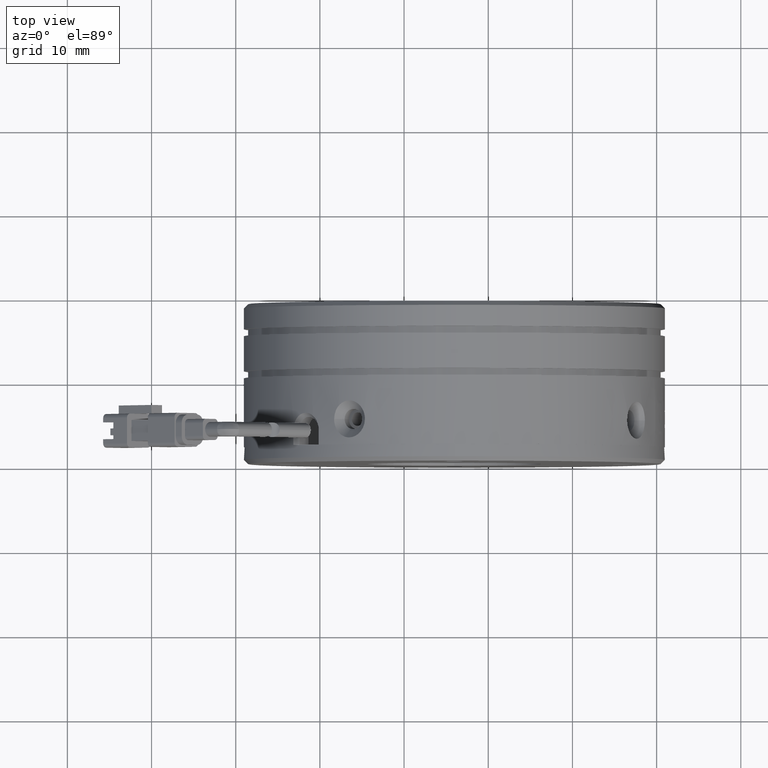
[diagram: clean part render]
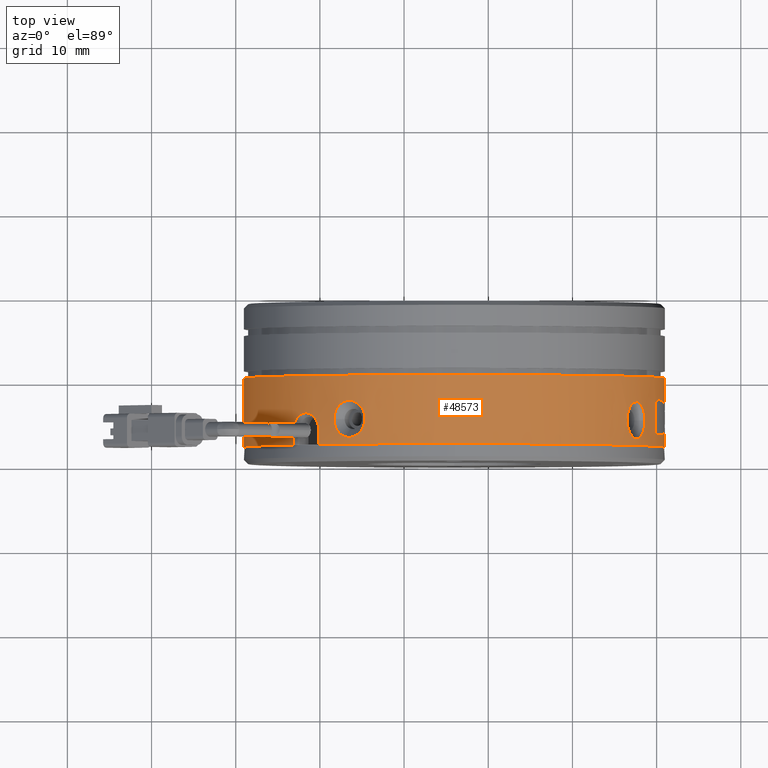
[diagram: same view with one face highlighted and labeled with its STEP entity id]
A machine part, top view. The second image highlights one B-rep face of the part: STEP entity #48573.
In plain terms, the highlighted cylindrical surface (partial cylindrical patch) has radius 25 mm, axis along (0, 1, -0).
Its self-contained STEP definition (entity closure, byte-faithful):
#198 = CARTESIAN_POINT ( 'NONE',  ( -20.12320127845588400, 3.868234147060709100, 19.12784023745772900 ) ) ;
#249 = CARTESIAN_POINT ( 'NONE',  ( -14.65323546949506600, 5.025875740962060700, 22.62869884692471300 ) ) ;
#433 = CARTESIAN_POINT ( 'NONE',  ( -15.69198677719024100, 3.199914697282051400, 22.11146839832291300 ) ) ;
#481 = CARTESIAN_POINT ( 'NONE',  ( 18.51408515264668600, 4.209159485326343200, 10.81459179394942200 ) ) ;
#620 = CARTESIAN_POINT ( 'NONE',  ( 20.07991698485157900, 7.694025951035285100, 6.626726948260824200 ) ) ;
#637 = CARTESIAN_POINT ( 'NONE',  ( -18.08497988603602000, 4.080495389426645600, 20.67233954934540600 ) ) ;
#695 = CARTESIAN_POINT ( 'NONE',  ( 17.27167173758336800, 3.084271499202876100, 13.09326545330914000 ) ) ;
#757 = ORIENTED_EDGE ( 'NONE', *, *, #37888, .T. ) ;
#860 = CARTESIAN_POINT ( 'NONE',  ( 20.75882114431203000, 3.620890884786182700, 3.276004059552732000 ) ) ;
#904 = CARTESIAN_POINT ( 'NONE',  ( 16.49214373681054000, 5.168234147060708500, 14.28331964063667500 ) ) ;
#1002 =( BOUNDED_CURVE ( )  B_SPLINE_CURVE ( 3, ( #30401, #1208, #44860, #16049 ),
 .UNSPECIFIED., .F., .T. ) 
 B_SPLINE_CURVE_WITH_KNOTS ( ( 4, 4 ),
 ( 5.252670096415093000, 5.254124959259855600 ),
 .UNSPECIFIED. ) 
 CURVE ( )  GEOMETRIC_REPRESENTATION_ITEM ( )  RATIONAL_B_SPLINE_CURVE ( ( 1.000000000000000000, 0.9999998236145162300, 0.9999998236145162300, 1.000000000000000000 ) ) 
 REPRESENTATION_ITEM ( '' )  );
#1064 = AXIS2_PLACEMENT_3D ( 'NONE', #13769, #47351, #18630 ) ;
#1208 = CARTESIAN_POINT ( 'NONE',  ( 19.84306476123924400, 5.104238206659600200, 7.434820255219084300 ) ) ;
#1330 = EDGE_CURVE ( 'NONE', #60598, #60239, #24988, .T. ) ;
#1429 = CARTESIAN_POINT ( 'NONE',  ( 17.96202705049371000, 7.252196794918648800, 11.89753497607337200 ) ) ;
#1907 = DIRECTION ( 'NONE',  ( 0.0000000000000000000, 1.000000000000000000, -0.0000000000000000000 ) ) ;
#1967 = CARTESIAN_POINT ( 'NONE',  ( 19.89646920286138300, 3.749712273616252000, 7.261681192122790000 ) ) ;
#2155 = CIRCLE ( 'NONE', #1064, 25.00000000000000000 ) ;
#2236 = ORIENTED_EDGE ( 'NONE', *, *, #54690, .T. ) ;
#2373 = EDGE_CURVE ( 'NONE', #13202, #45239, #41893, .T. ) ;
#2430 = CARTESIAN_POINT ( 'NONE',  ( 20.70010523892593200, 3.551589418287440100, 3.691705350810279300 ) ) ;
#2981 = ORIENTED_EDGE ( 'NONE', *, *, #45496, .T. ) ;
#3077 = DIRECTION ( 'NONE',  ( 0.0000000000000000000, 1.000000000000000000, -0.0000000000000000000 ) ) ;
#3078 = CARTESIAN_POINT ( 'NONE',  ( 20.96461728709808600, 7.059601391237767300, 0.7083574249983168900 ) ) ;
#3151 = CARTESIAN_POINT ( 'NONE',  ( -18.25576117448013800, 5.726606713949252000, 20.55503359053789200 ) ) ;
#3333 = VERTEX_POINT ( 'NONE', #20683 ) ;
#3370 = CARTESIAN_POINT ( 'NONE',  ( -16.28293880078115300, 7.353763402375156100, 21.78949684844016900 ) ) ;
#3574 = CARTESIAN_POINT ( 'NONE',  ( -14.66543054506434500, 5.453143327471437400, 22.62298265852351900 ) ) ;
#3739 = B_SPLINE_CURVE_WITH_KNOTS ( 'NONE', 3,
 ( #32849, #61451, #42539, #13728, #47306, #18583, #52097, #23461, #56910, #28266 ),
 .UNSPECIFIED., .F., .F.,
 ( 4, 2, 2, 2, 4 ),
 ( 0.0000000000000000000, 0.0003539154720314069100, 0.0007078309440628138200, 0.001061746416094220800, 0.001415661888125627600 ),
 .UNSPECIFIED. ) ;
#4397 = CARTESIAN_POINT ( 'NONE',  ( 20.94433259945262200, 7.013857998718211000, 1.233426618746881000 ) ) ;
#4534 = EDGE_CURVE ( 'NONE', #58688, #26346, #16990, .T. ) ;
#4727 = CARTESIAN_POINT ( 'NONE',  ( 18.60288020821306500, 5.168234147060708500, 10.62741683077895000 ) ) ;
#4932 = ORIENTED_EDGE ( 'NONE', *, *, #7618, .T. ) ;
#4973 = CARTESIAN_POINT ( 'NONE',  ( -14.65323546949505000, 5.168234147060708500, 22.62869884692472100 ) ) ;
#5193 = CARTESIAN_POINT ( 'NONE',  ( -16.28003248483973300, 2.968638605293177700, 21.79250202241476900 ) ) ;
#5243 = CARTESIAN_POINT ( 'NONE',  ( 18.42126804005754400, 3.845971748396280100, 11.00608436952663600 ) ) ;
#5402 = CARTESIAN_POINT ( 'NONE',  ( -18.22319937025753600, 4.471282925419449900, 20.57758570320166000 ) ) ;
#5455 = CARTESIAN_POINT ( 'NONE',  ( 17.06845877027141300, 3.268726398569390800, 13.41807087934553000 ) ) ;
#5552 = DIRECTION ( 'NONE',  ( 0.0000000000000000000, 1.000000000000000000, -0.0000000000000000000 ) ) ;
#5605 = CARTESIAN_POINT ( 'NONE',  ( 20.71592161918375300, 3.552825996118543100, 3.585772028101073000 ) ) ;
#6270 = ORIENTED_EDGE ( 'NONE', *, *, #19152, .T. ) ;
#6337 = CARTESIAN_POINT ( 'NONE',  ( 20.80222173950301100, 6.975325470166869700, 2.927184821235513800 ) ) ;
#6678 = DIRECTION ( 'NONE',  ( 0.0000000000000000000, 1.000000000000000000, -0.0000000000000000000 ) ) ;
#6768 = CARTESIAN_POINT ( 'NONE',  ( 19.85202578657188300, 4.047051057493446200, 7.406096033444033100 ) ) ;
#6908 = CARTESIAN_POINT ( 'NONE',  ( 20.92789667332636900, 4.330325048378557400, 1.522707774882770600 ) ) ;
#7618 = EDGE_CURVE ( 'NONE', #45239, #36413, #54340, .T. ) ;
#7710 = CARTESIAN_POINT ( 'NONE',  ( 20.97418136128692400, 2.168234147060708900, 3.422791846577617100E-015 ) ) ;
#7885 = DIRECTION ( 'NONE',  ( -0.0000000000000000000, -1.000000000000000000, 0.0000000000000000000 ) ) ;
#7922 = CARTESIAN_POINT ( 'NONE',  ( 20.96842437029928200, 7.045842321053945600, 0.5566223923077282500 ) ) ;
#7983 = CARTESIAN_POINT ( 'NONE',  ( -18.13865202391065200, 6.127308808793963600, 20.63566312080048000 ) ) ;
#8059 = EDGE_CURVE ( 'NONE', #60239, #22164, #51898, .T. ) ;
#8148 = CARTESIAN_POINT ( 'NONE',  ( -23.15365887617074800, 3.868234147060709100, 16.09738263974287900 ) ) ;
#8211 = CARTESIAN_POINT ( 'NONE',  ( -15.92335361478682600, 7.252196794915976200, 21.98784568920657600 ) ) ;
#8410 = CARTESIAN_POINT ( 'NONE',  ( -14.65323546949505000, 5.168234147060708500, 22.62869884692472100 ) ) ;
#8855 = ORIENTED_EDGE ( 'NONE', *, *, #4534, .T. ) ;
#9038 = CARTESIAN_POINT ( 'NONE',  ( 20.87745001844171000, 5.794678184446288700, 2.197095886627118900 ) ) ;
#9236 = CARTESIAN_POINT ( 'NONE',  ( 20.95931338662152000, 7.057754947542386000, 0.8620775351437706100 ) ) ;
#9251 = VERTEX_POINT ( 'NONE', #59617 ) ;
#9818 = CARTESIAN_POINT ( 'NONE',  ( -14.71202863587811500, 4.609861580171056500, 22.60100852563584400 ) ) ;
#9845 = VERTEX_POINT ( 'NONE', #54836 ) ;
#10017 = CARTESIAN_POINT ( 'NONE',  ( -16.76751636410810800, 2.982704891746041900, 21.50972586181012100 ) ) ;
#10070 = CARTESIAN_POINT ( 'NONE',  ( 18.29631359071448000, 3.527018439528486900, 11.25751952766027300 ) ) ;
#10215 = CARTESIAN_POINT ( 'NONE',  ( 20.69173769991640900, 7.727101298061381100, 3.747320195376608400 ) ) ;
#10221 = ORIENTED_EDGE ( 'NONE', *, *, #24668, .T. ) ;
#10234 = CARTESIAN_POINT ( 'NONE',  ( -18.29809037719375200, 4.883324966650524100, 20.52566552656925900 ) ) ;
#10277 = CARTESIAN_POINT ( 'NONE',  ( 16.88623654800459700, 3.524024442939467100, 13.70020054965815600 ) ) ;
#10552 = EDGE_CURVE ( 'NONE', #41380, #9845, #46695, .T. ) ;
#11623 = CARTESIAN_POINT ( 'NONE',  ( 19.84666469512557500, 4.270296655339604000, 7.423243191193201100 ) ) ;
#11747 = FACE_BOUND ( 'NONE', #22286, .T. ) ;
#11760 = EDGE_CURVE ( 'NONE', #22164, #22491, #45559, .T. ) ;
#12048 = VERTEX_POINT ( 'NONE', #2430 ) ;
#12568 = CIRCLE ( 'NONE', #18439, 25.00000000000000000 ) ;
#12804 = CARTESIAN_POINT ( 'NONE',  ( 20.97418136128693800, 6.897578184509039400, 0.1188730389780328500 ) ) ;
#12874 = CARTESIAN_POINT ( 'NONE',  ( -17.96252375871485200, 6.490496545722555400, 20.75509199959124700 ) ) ;
#13083 = CARTESIAN_POINT ( 'NONE',  ( -15.58496330969791200, 7.067741895549071200, 22.16752895578523700 ) ) ;
#13202 = VERTEX_POINT ( 'NONE', #25042 ) ;
#13701 = EDGE_LOOP ( 'NONE', ( #18759, #27802, #36078, #47024, #55492, #17692, #20793, #58161, #44968, #25372, #61547, #4932, #6270 ) ) ;
#13728 = CARTESIAN_POINT ( 'NONE',  ( 19.86141520707894900, 7.235229466027396600, 7.375730050838333400 ) ) ;
#13769 = CARTESIAN_POINT ( 'NONE',  ( -4.025818638713078100, 10.36823414706071000, 3.557538378468061400E-016 ) ) ;
#13796 = CARTESIAN_POINT ( 'NONE',  ( 20.55520230648676600, 3.540260419427072100, 4.662221287666193700 ) ) ;
#13885 = CARTESIAN_POINT ( 'NONE',  ( 20.87940407189934800, 5.976962359149793800, 2.175451335830711000 ) ) ;
#13892 = CIRCLE ( 'NONE', #27207, 25.00000000000000000 ) ;
#14586 = ORIENTED_EDGE ( 'NONE', *, *, #29339, .T. ) ;
#14655 = CARTESIAN_POINT ( 'NONE',  ( -14.84041043266527500, 4.209159485327251800, 22.53990379135842700 ) ) ;
#14860 = CARTESIAN_POINT ( 'NONE',  ( -17.11908409202129600, 3.084271499205407000, 21.29749037629700900 ) ) ;
#14911 = CARTESIAN_POINT ( 'NONE',  ( 18.14352026195060900, 3.271119580996116700, 11.55567286598068900 ) ) ;
#14962 = EDGE_LOOP ( 'NONE', ( #21313, #27913 ) ) ;
#14977 = CARTESIAN_POINT ( 'NONE',  ( 20.07991698485157900, 7.694025951035285100, 6.626726948260824200 ) ) ;
#15077 = CARTESIAN_POINT ( 'NONE',  ( -18.30913827934658000, 5.168234147060708500, 20.51796237552582300 ) ) ;
#15081 = CARTESIAN_POINT ( 'NONE',  ( 20.80632795550790700, 4.322353943957555300, 2.892143759068543900 ) ) ;
#15124 = CARTESIAN_POINT ( 'NONE',  ( 16.73059528489842400, 3.842674262655652900, 13.93473783224368700 ) ) ;
#15366 = VERTEX_POINT ( 'NONE', #38068 ) ;
#15784 = VERTEX_POINT ( 'NONE', #27174 ) ;
#16049 = CARTESIAN_POINT ( 'NONE',  ( 19.83583963367515000, 6.771028605337383200, 7.457966511842655200 ) ) ;
#16240 = CARTESIAN_POINT ( 'NONE',  ( 20.06643072843969500, 3.517301714363789700, 6.676515737583183200 ) ) ;
#16287 = ORIENTED_EDGE ( 'NONE', *, *, #34275, .T. ) ;
#16297 = VECTOR ( 'NONE', #5552, 1000.000000000000000 ) ;
#16990 = B_SPLINE_CURVE_WITH_KNOTS ( 'NONE', 3,
 ( #37217, #36859, #36728, #37263, #37347, #37416, #37642, #37852, #37995, #38067 ),
 .UNSPECIFIED., .F., .F.,
 ( 4, 2, 2, 2, 4 ),
 ( 0.0000000000000000000, 0.0003179315198934416900, 0.0006358630397868833900, 0.0009537945596803250800, 0.001271726079573766800 ),
 .UNSPECIFIED. ) ;
#17147 = VERTEX_POINT ( 'NONE', #41815 ) ;
#17491 = CARTESIAN_POINT ( 'NONE',  ( -18.30913827934658000, 5.168234147060708500, 20.51796237552582300 ) ) ;
#17675 = CARTESIAN_POINT ( 'NONE',  ( -17.72859245220099200, 6.809449854590798900, 20.91036400926800500 ) ) ;
#17692 = ORIENTED_EDGE ( 'NONE', *, *, #29056, .T. ) ;
#17896 = CARTESIAN_POINT ( 'NONE',  ( -15.28608940092456200, 6.812443851178450400, 22.32074930630384900 ) ) ;
#18439 = AXIS2_PLACEMENT_3D ( 'NONE', #19668, #53142, #24513 ) ;
#18547 = CYLINDRICAL_SURFACE ( 'NONE', #31576, 25.00000000000000000 ) ;
#18583 = CARTESIAN_POINT ( 'NONE',  ( 19.92500742630542000, 7.518088387206832500, 7.166890098463923700 ) ) ;
#18630 = DIRECTION ( 'NONE',  ( -1.000000000000000000, 0.0000000000000000000, -2.168404344971001200E-019 ) ) ;
#18756 = CARTESIAN_POINT ( 'NONE',  ( 20.88892165538288400, 6.329555947993899400, 2.063394248411451600 ) ) ;
#18759 = ORIENTED_EDGE ( 'NONE', *, *, #55140, .F. ) ;
#19152 = EDGE_CURVE ( 'NONE', #36413, #21533, #57581, .T. ) ;
#19384 = VECTOR ( 'NONE', #24084, 1000.000000000000000 ) ;
#19555 = CARTESIAN_POINT ( 'NONE',  ( -15.03190300824214500, 3.845971748397708700, 22.44708667876944500 ) ) ;
#19668 = CARTESIAN_POINT ( 'NONE',  ( -4.025818638713078100, 2.168234147060708900, 3.557538378468061400E-016 ) ) ;
#19755 = CARTESIAN_POINT ( 'NONE',  ( -17.44388951805715100, 3.268726398571802200, 21.09427740898540900 ) ) ;
#19805 = CARTESIAN_POINT ( 'NONE',  ( 17.90400130341472000, 3.029400586774346800, 12.00620890901294200 ) ) ;
#20007 = CARTESIAN_POINT ( 'NONE',  ( 16.61009369884355300, 4.208265367895338100, 14.11246877784738500 ) ) ;
#20490 = LINE ( 'NONE', #60505, #57181 ) ;
#20683 = CARTESIAN_POINT ( 'NONE',  ( 20.97418136128692400, 6.800444789837970700, -1.532628191025509100E-012 ) ) ;
#20793 = ORIENTED_EDGE ( 'NONE', *, *, #39622, .T. ) ;
#21313 = ORIENTED_EDGE ( 'NONE', *, *, #10552, .T. ) ;
#21487 = EDGE_LOOP ( 'NONE', ( #2981, #14586 ) ) ;
#21533 = VERTEX_POINT ( 'NONE', #32791 ) ;
#21614 = CARTESIAN_POINT ( 'NONE',  ( 20.97418136128692400, 4.343992379600552000, 3.903127820947816000E-015 ) ) ;
#22164 = VERTEX_POINT ( 'NONE', #60076 ) ;
#22286 = EDGE_LOOP ( 'NONE', ( #34646, #51842, #57849, #757, #2236, #8855, #10221, #16287 ) ) ;
#22491 = VERTEX_POINT ( 'NONE', #53205 ) ;
#22591 = CARTESIAN_POINT ( 'NONE',  ( -17.44719287880389300, 7.065348713122259200, 21.09217571009375200 ) ) ;
#22642 = EDGE_CURVE ( 'NONE', #15784, #17147, #1002, .T. ) ;
#22782 = CARTESIAN_POINT ( 'NONE',  ( 18.60288020821306500, 5.168234147060708500, 10.62741683077895000 ) ) ;
#22789 = CARTESIAN_POINT ( 'NONE',  ( -15.03403147190620200, 6.493794031463402800, 22.44604391960373800 ) ) ;
#22830 = CARTESIAN_POINT ( 'NONE',  ( 18.60288020821306500, 5.310569730539548100, 10.62741683077895000 ) ) ;
#22845 = CARTESIAN_POINT ( 'NONE',  ( 18.59716401981200900, 5.453143327469620200, 10.63961190634795700 ) ) ;
#22900 = CARTESIAN_POINT ( 'NONE',  ( 20.80496745880654800, 5.206909354247938100, 2.903825077959839800 ) ) ;
#23455 = EDGE_CURVE ( 'NONE', #22491, #59926, #32635, .T. ) ;
#23461 = CARTESIAN_POINT ( 'NONE',  ( 20.01548116783898500, 7.673182049915741500, 6.857704645081670800 ) ) ;
#23626 = CARTESIAN_POINT ( 'NONE',  ( 20.90004805935840100, 6.570018431110972800, 1.924858273511739200 ) ) ;
#24084 = DIRECTION ( 'NONE',  ( -0.0000000000000000000, -1.000000000000000000, 0.0000000000000000000 ) ) ;
#24285 = CARTESIAN_POINT ( 'NONE',  ( -20.12320127845588400, 2.168234147060708900, 19.12784023745772900 ) ) ;
#24406 = CARTESIAN_POINT ( 'NONE',  ( -15.28333816637533700, 3.527018439530323700, 22.32213222942656800 ) ) ;
#24513 = DIRECTION ( 'NONE',  ( -1.000000000000000000, 0.0000000000000000000, -2.168404344971001200E-019 ) ) ;
#24596 = CARTESIAN_POINT ( 'NONE',  ( -17.72601918836926400, 3.524024442941658300, 20.91205518671894500 ) ) ;
#24622 = FACE_OUTER_BOUND ( 'NONE', #13701, .T. ) ;
#24654 = CARTESIAN_POINT ( 'NONE',  ( 17.55605523754831100, 2.968035030043940200, 12.61913013384975300 ) ) ;
#24668 = EDGE_CURVE ( 'NONE', #26346, #47184, #49503, .T. ) ;
#24820 = CARTESIAN_POINT ( 'NONE',  ( 20.79772946640480700, 3.906781894013025900, 2.965216046634928200 ) ) ;
#24861 = CARTESIAN_POINT ( 'NONE',  ( 16.52970440417000500, 4.606316707441249200, 14.22923604130351500 ) ) ;
#24988 = LINE ( 'NONE', #7710, #48962 ) ;
#25042 = CARTESIAN_POINT ( 'NONE',  ( -23.15365887617074800, 2.168234147060708900, 16.09738263974287900 ) ) ;
#25372 = ORIENTED_EDGE ( 'NONE', *, *, #53851, .F. ) ;
#25521 = VECTOR ( 'NONE', #1907, 1000.000000000000000 ) ;
#25702 = VERTEX_POINT ( 'NONE', #50987 ) ;
#25954 = CARTESIAN_POINT ( 'NONE',  ( 20.03681687962379600, 3.525263045516549900, 6.782420365286029100 ) ) ;
#26346 = VERTEX_POINT ( 'NONE', #6337 ) ;
#27174 = CARTESIAN_POINT ( 'NONE',  ( 19.84666469512557500, 4.270296655339604000, 7.423243191193201100 ) ) ;
#27207 = AXIS2_PLACEMENT_3D ( 'NONE', #36723, #7885, #41546 ) ;
#27381 = CARTESIAN_POINT ( 'NONE',  ( -17.01449535450793600, 7.307067707344280900, 21.36259188941210500 ) ) ;
#27437 = CARTESIAN_POINT ( 'NONE',  ( 20.80632795550790700, 4.322353943957555300, 2.892143759068543900 ) ) ;
#27610 = CARTESIAN_POINT ( 'NONE',  ( -14.84080856438471200, 6.128202926223373500, 22.53971264050763800 ) ) ;
#27802 = ORIENTED_EDGE ( 'NONE', *, *, #1330, .T. ) ;
#27913 = ORIENTED_EDGE ( 'NONE', *, *, #54134, .T. ) ;
#27924 =( BOUNDED_CURVE ( )  B_SPLINE_CURVE ( 3, ( #620, #29390, #39056, #10215 ),
 .UNSPECIFIED., .F., .T. ) 
 B_SPLINE_CURVE_WITH_KNOTS ( ( 4, 4 ),
 ( 4.205308057915881500, 4.323123765252399900 ),
 .UNSPECIFIED. ) 
 CURVE ( )  GEOMETRIC_REPRESENTATION_ITEM ( )  RATIONAL_B_SPLINE_CURVE ( ( 1.000000000000000000, 0.9988436227155569300, 0.9988436227155569300, 1.000000000000000000 ) ) 
 REPRESENTATION_ITEM ( '' )  );
#28266 = CARTESIAN_POINT ( 'NONE',  ( 20.07991698485157900, 7.694025951035285100, 6.626726948260824200 ) ) ;
#28341 = CARTESIAN_POINT ( 'NONE',  ( 20.09562333638090000, 3.518514071261344500, 6.569325463255291100 ) ) ;
#28425 = CARTESIAN_POINT ( 'NONE',  ( 20.91435893451921400, 6.769918045886480900, 1.730171387064613600 ) ) ;
#29003 = CARTESIAN_POINT ( 'NONE',  ( -14.66518801078132000, 4.885764068582046700, 22.62309638055918600 ) ) ;
#29056 = EDGE_CURVE ( 'NONE', #59926, #3333, #43584, .T. ) ;
#29212 = CARTESIAN_POINT ( 'NONE',  ( -15.58149150469522000, 3.271119580998277200, 22.16933890066294300 ) ) ;
#29261 = CARTESIAN_POINT ( 'NONE',  ( 18.55850257531843200, 4.472922933716982500, 10.72152479337517100 ) ) ;
#29339 = EDGE_CURVE ( 'NONE', #46778, #39970, #52863, .T. ) ;
#29390 = CARTESIAN_POINT ( 'NONE',  ( 20.34031178609684400, 7.704732238312288900, 5.679500921660076300 ) ) ;
#29410 = CARTESIAN_POINT ( 'NONE',  ( -17.96055647095435500, 3.842674262657503900, 20.75641392361313500 ) ) ;
#29462 = CARTESIAN_POINT ( 'NONE',  ( 17.34146826587950600, 3.041116540648629600, 12.97914550008537100 ) ) ;
#29627 = CARTESIAN_POINT ( 'NONE',  ( 20.77148087331566700, 3.668727483162365700, 3.178070539584975300 ) ) ;
#29670 = CARTESIAN_POINT ( 'NONE',  ( 16.49214373681059000, 5.025852914682782400, 14.28331964063693200 ) ) ;
#29864 = VERTEX_POINT ( 'NONE', #57358 ) ;
#30401 = CARTESIAN_POINT ( 'NONE',  ( 19.84666469512557500, 4.270296655339604000, 7.423243191193201100 ) ) ;
#30728 = CARTESIAN_POINT ( 'NONE',  ( -29.02581863871307600, 2.168234147060708900, 3.503328269843786200E-016 ) ) ;
#30798 = CARTESIAN_POINT ( 'NONE',  ( 19.94740035376650100, 3.616148823998059000, 7.091730427038785800 ) ) ;
#31240 =( BOUNDED_CURVE ( )  B_SPLINE_CURVE ( 3, ( #47386, #13796, #56984, #28341 ),
 .UNSPECIFIED., .F., .T. ) 
 B_SPLINE_CURVE_WITH_KNOTS ( ( 4, 4 ),
 ( 1.957811909786883800, 2.075496788255711200 ),
 .UNSPECIFIED. ) 
 CURVE ( )  GEOMETRIC_REPRESENTATION_ITEM ( )  RATIONAL_B_SPLINE_CURVE ( ( 1.000000000000000000, 0.9988461887554352900, 0.9988461887554352900, 1.000000000000000000 ) ) 
 REPRESENTATION_ITEM ( '' )  );
#31576 = AXIS2_PLACEMENT_3D ( 'NONE', #49574, #44781, #35355 ) ;
#31922 = CARTESIAN_POINT ( 'NONE',  ( 20.95931338662152000, 7.057754947542386000, 0.8620775351437706100 ) ) ;
#32000 = CARTESIAN_POINT ( 'NONE',  ( -18.29831013050709700, 5.450704225538672200, 20.52551234673670100 ) ) ;
#32204 = CARTESIAN_POINT ( 'NONE',  ( -16.40670460990310200, 7.368433264074939300, 21.71942420770584200 ) ) ;
#32244 = LINE ( 'NONE', #30728, #25521 ) ;
#32427 = CARTESIAN_POINT ( 'NONE',  ( -14.71280576127783800, 5.730151586679099300, 22.60064140965391400 ) ) ;
#32635 = B_SPLINE_CURVE_WITH_KNOTS ( 'NONE', 3,
 ( #37866, #9038, #13885, #47472, #18756, #52250, #23626, #57077, #28425, #61823, #33222, #4397, #38086, #9236 ),
 .UNSPECIFIED., .F., .F.,
 ( 4, 2, 2, 2, 2, 2, 4 ),
 ( 0.0000000000000000000, 0.0005493779126704128600, 0.0008240668690056192300, 0.001098755825340825500, 0.001373444781676031600, 0.001648133738011238000, 0.002197511650681650600 ),
 .UNSPECIFIED. ) ;
#32791 = CARTESIAN_POINT ( 'NONE',  ( -20.12320127845588400, 2.168234147060708900, 19.12784023745772900 ) ) ;
#32849 = CARTESIAN_POINT ( 'NONE',  ( 19.83583963367515000, 6.771028605337383200, 7.457966511842655200 ) ) ;
#33222 = CARTESIAN_POINT ( 'NONE',  ( 20.92977370504883800, 6.914917525791371300, 1.491931396595406400 ) ) ;
#33269 = CARTESIAN_POINT ( 'NONE',  ( 20.69173769991640900, 7.727101298061381100, 3.747320195376608400 ) ) ;
#33697 = CARTESIAN_POINT ( 'NONE',  ( 18.57482277094220200, 5.730151586680232600, 10.68698712256187900 ) ) ;
#33706 = CARTESIAN_POINT ( 'NONE',  ( 18.55826659360615600, 5.865185368703899700, 10.72202160174934500 ) ) ;
#33858 = CARTESIAN_POINT ( 'NONE',  ( 18.51389400179506900, 6.128202926228583500, 10.81498992567058400 ) ) ;
#33998 = CARTESIAN_POINT ( 'NONE',  ( -16.03202754772675600, 3.029400586776765300, 21.92981994212739500 ) ) ;
#34051 = CARTESIAN_POINT ( 'NONE',  ( 18.48671709162988100, 4.083790138663709400, 10.87158353246719900 ) ) ;
#34207 = CARTESIAN_POINT ( 'NONE',  ( -18.13828741655767000, 4.208265367896728100, 20.63591233755853300 ) ) ;
#34254 = CARTESIAN_POINT ( 'NONE',  ( 17.13518960217700400, 3.197824607514775200, 13.31271673206640200 ) ) ;
#34271 = CARTESIAN_POINT ( 'NONE',  ( 18.48594193204433000, 6.255972904695736000, 10.87319058172666300 ) ) ;
#34275 = EDGE_CURVE ( 'NONE', #47184, #12048, #52443, .T. ) ;
#34328 = CARTESIAN_POINT ( 'NONE',  ( 18.42022528089130200, 6.493794031466689100, 11.00821283319181100 ) ) ;
#34411 = CARTESIAN_POINT ( 'NONE',  ( 18.38226664315922700, 6.605267953872232300, 11.08545268509664400 ) ) ;
#34427 = CARTESIAN_POINT ( 'NONE',  ( 20.73103628832119900, 3.563746544092828200, 3.479756585495014300 ) ) ;
#34485 = CARTESIAN_POINT ( 'NONE',  ( 18.29493066758971100, 6.812443851184673900, 11.26027076221360600 ) ) ;
#34610 = CARTESIAN_POINT ( 'NONE',  ( 18.24687894992360200, 6.904954522413447600, 11.35517977204551300 ) ) ;
#34623 = CARTESIAN_POINT ( 'NONE',  ( 18.14171031707150300, 7.067741895553196800, 11.55914467098608600 ) ) ;
#34630 = CARTESIAN_POINT ( 'NONE',  ( -18.30913827934658000, 5.168234147060708500, 20.51796237552582300 ) ) ;
#34646 = ORIENTED_EDGE ( 'NONE', *, *, #37408, .T. ) ;
#34701 = CARTESIAN_POINT ( 'NONE',  ( 17.89809453607084700, 7.295351753473156000, 12.01504051928647400 ) ) ;
#34751 = CARTESIAN_POINT ( 'NONE',  ( 17.76367820972492600, 7.353763402378422000, 12.25712016207194900 ) ) ;
#34820 = CARTESIAN_POINT ( 'NONE',  ( 17.69360556899350100, 7.368433264077463500, 12.38088597118873800 ) ) ;
#34830 = CARTESIAN_POINT ( 'NONE',  ( 17.48289286664563800, 7.367829688830755500, 12.74575344037399900 ) ) ;
#34890 = CARTESIAN_POINT ( 'NONE',  ( 17.33677325069954700, 7.307067707347758100, 12.98867671579404300 ) ) ;
#34894 = CARTESIAN_POINT ( 'NONE',  ( 20.96179658823153200, 4.167271785106379400, 0.7868197189736734200 ) ) ;
#34906 = CARTESIAN_POINT ( 'NONE',  ( 20.96608749068509100, 4.168909826900442500, 0.6505503590424089900 ) ) ;
#34950 = CARTESIAN_POINT ( 'NONE',  ( 17.13311353318854200, 7.136553596841065600, 13.31600927868854900 ) ) ;
#34976 = CARTESIAN_POINT ( 'NONE',  ( 20.96922909401119400, 4.179863978226496400, 0.5152295101151326300 ) ) ;
#35015 = CARTESIAN_POINT ( 'NONE',  ( 17.06635707138159600, 7.065348713126894600, 13.42137424008939600 ) ) ;
#35029 = CARTESIAN_POINT ( 'NONE',  ( 16.94228590830314500, 6.901797381598576900, 13.61439511632595500 ) ) ;
#35031 = CARTESIAN_POINT ( 'NONE',  ( 20.97418136128692400, 4.343992379600552000, 3.903127820947816000E-015 ) ) ;
#35098 = CARTESIAN_POINT ( 'NONE',  ( 16.88454537055362800, 6.809449854593079700, 13.70277381348991800 ) ) ;
#35148 = CARTESIAN_POINT ( 'NONE',  ( 16.77801819992114900, 6.604063016174735300, 13.86397150801986200 ) ) ;
#35157 = CARTESIAN_POINT ( 'NONE',  ( 16.72927336087751400, 6.490496545726958100, 13.93670512000275800 ) ) ;
#35227 = CARTESIAN_POINT ( 'NONE',  ( 16.64551674493932500, 6.252678155458100100, 14.06063607984862600 ) ) ;
#35239 = CARTESIAN_POINT ( 'NONE',  ( 16.60984448208526100, 6.127308808794664300, 14.11283338520071800 ) ) ;
#35355 = DIRECTION ( 'NONE',  ( -1.000000000000000000, 0.0000000000000000000, -2.168404344971001200E-019 ) ) ;
#35358 = CARTESIAN_POINT ( 'NONE',  ( 16.55145480666952200, 5.863545360402256700, 14.19783350189262300 ) ) ;
#35427 = CARTESIAN_POINT ( 'NONE',  ( 16.52921495182295800, 5.726606713952045300, 14.22994253576973900 ) ) ;
#35437 = CARTESIAN_POINT ( 'NONE',  ( 16.49969370802145000, 5.450704225539627900, 14.27249149179714400 ) ) ;
#35507 = CARTESIAN_POINT ( 'NONE',  ( 20.97330987174664300, 4.233753026814115500, 0.2478836960730578800 ) ) ;
#35598 = CARTESIAN_POINT ( 'NONE',  ( 19.87641592192254700, 3.841358637256917100, 7.326997738710137900 ) ) ;
#35623 = CARTESIAN_POINT ( 'NONE',  ( 16.49214373681054000, 5.168234147060708500, 14.28331964063667500 ) ) ;
#36078 = ORIENTED_EDGE ( 'NONE', *, *, #8059, .T. ) ;
#36250 = CARTESIAN_POINT ( 'NONE',  ( 20.97418136128692400, 4.276070580432401500, 0.1188227910279600600 ) ) ;
#36413 = VERTEX_POINT ( 'NONE', #198 ) ;
#36723 = CARTESIAN_POINT ( 'NONE',  ( -4.025818638713078100, 2.168234147060708900, 3.557538378468061400E-016 ) ) ;
#36728 = CARTESIAN_POINT ( 'NONE',  ( 20.72294487430538400, 7.720135584360512800, 3.536866942930025500 ) ) ;
#36837 = CARTESIAN_POINT ( 'NONE',  ( -18.22365214060179300, 5.863545360404474500, 20.57727344538528400 ) ) ;
#36859 = CARTESIAN_POINT ( 'NONE',  ( 20.70777226571688700, 7.728335193362560100, 3.641555205230386300 ) ) ;
#37037 = CARTESIAN_POINT ( 'NONE',  ( -16.04085915799857200, 7.295351753470086500, 21.92391317478444900 ) ) ;
#37217 = CARTESIAN_POINT ( 'NONE',  ( 20.69173769991640900, 7.727101298061381100, 3.747320195376608400 ) ) ;
#37240 = CARTESIAN_POINT ( 'NONE',  ( -14.65323546949502800, 5.310569730538961000, 22.62869884692472100 ) ) ;
#37263 = CARTESIAN_POINT ( 'NONE',  ( 20.75139536719815000, 7.668332172564756600, 3.331724673585955800 ) ) ;
#37338 = FACE_BOUND ( 'NONE', #14962, .T. ) ;
#37347 = CARTESIAN_POINT ( 'NONE',  ( 20.76454617324856100, 7.622822966761011900, 3.231770810853996400 ) ) ;
#37408 = EDGE_CURVE ( 'NONE', #12048, #9251, #31240, .T. ) ;
#37416 = CARTESIAN_POINT ( 'NONE',  ( 20.78492041092901100, 7.484367568029011200, 3.071442315036851500 ) ) ;
#37642 = CARTESIAN_POINT ( 'NONE',  ( 20.79204319840881600, 7.391545220158218600, 3.012472970116878200 ) ) ;
#37852 = CARTESIAN_POINT ( 'NONE',  ( 20.80049623866927200, 7.189291134846583600, 2.941997479811896600 ) ) ;
#37866 = CARTESIAN_POINT ( 'NONE',  ( 20.87705476061862300, 5.609102189260054800, 2.201566818622008100 ) ) ;
#37888 = EDGE_CURVE ( 'NONE', #17147, #47429, #3739, .T. ) ;
#37927 = CARTESIAN_POINT ( 'NONE',  ( 20.80359871991109000, 6.091233343084632600, 2.915505433954027800 ) ) ;
#37995 = CARTESIAN_POINT ( 'NONE',  ( 20.80205464551932300, 7.082608387632531000, 2.928602092924049000 ) ) ;
#38067 = CARTESIAN_POINT ( 'NONE',  ( 20.80222173950301100, 6.975325470166869700, 2.927184821235513800 ) ) ;
#38068 = CARTESIAN_POINT ( 'NONE',  ( -29.02581863871307600, 2.168234147060708900, 3.503328269843786200E-016 ) ) ;
#38086 = CARTESIAN_POINT ( 'NONE',  ( 20.95288993734805800, 7.046151487617727600, 1.048244929156905400 ) ) ;
#38873 = CARTESIAN_POINT ( 'NONE',  ( -16.64494877256264300, 2.968035030046488800, 21.58187387626150800 ) ) ;
#38933 = CARTESIAN_POINT ( 'NONE',  ( 18.38265130389213600, 3.732405277945402700, 11.08466544443538900 ) ) ;
#39056 = CARTESIAN_POINT ( 'NONE',  ( 20.54448812933713600, 7.715770117940925500, 4.718587492236568300 ) ) ;
#39077 = CARTESIAN_POINT ( 'NONE',  ( -18.25505468001353600, 4.606316707442085900, 20.55552304288518400 ) ) ;
#39132 = CARTESIAN_POINT ( 'NONE',  ( 16.94440430273546700, 3.431513771708181200, 13.61113203654564100 ) ) ;
#39296 = CARTESIAN_POINT ( 'NONE',  ( 20.70010523892593200, 3.551589418287440100, 3.691705350810279300 ) ) ;
#39622 = EDGE_CURVE ( 'NONE', #3333, #29864, #20490, .T. ) ;
#39848 = B_SPLINE_CURVE_WITH_KNOTS ( 'NONE', 3,
 ( #17491, #55823, #32000, #3151, #36837, #7983, #41657, #12874, #46455, #17675, #51234, #22591, #56028, #27381, #60803, #32204, #3370, #37037, #8211, #41856, #13083, #46661, #17896, #51424, #22789, #56235, #27610, #61003, #32427, #3574, #37240, #8410 ),
 .UNSPECIFIED., .F., .F.,
 ( 4, 2, 2, 2, 2, 2, 2, 2, 2, 2, 2, 2, 2, 2, 2, 4 ),
 ( 0.006736327848373952100, 0.007157280841719797400, 0.007578233835065643600, 0.007999186828411488900, 0.008420139821757334200, 0.008841092815103179400, 0.009262045808449024700, 0.01010395179514071700, 0.01052490478848655900, 0.01094585778183240200, 0.01136681077517824600, 0.01178776376852408800, 0.01220871676186993300, 0.01262966975521577500, 0.01305062274856161900, 0.01347157574190746200 ),
 .UNSPECIFIED. ) ;
#39970 = VERTEX_POINT ( 'NONE', #34630 ) ;
#40445 = CARTESIAN_POINT ( 'NONE',  ( 19.84714630419767200, 4.158729657347186600, 7.421694379676511100 ) ) ;
#41380 = VERTEX_POINT ( 'NONE', #53032 ) ;
#41546 = DIRECTION ( 'NONE',  ( -1.000000000000000000, 0.0000000000000000000, -8.883952601346225300E-016 ) ) ;
#41573 = CARTESIAN_POINT ( 'NONE',  ( 20.97327028733547700, 6.965466480297909200, 0.2599325849102798200 ) ) ;
#41657 = CARTESIAN_POINT ( 'NONE',  ( -18.08645471855915300, 6.252678155456075100, 20.67133538365412100 ) ) ;
#41815 = CARTESIAN_POINT ( 'NONE',  ( 19.83583963367515000, 6.771028605337383200, 7.457966511842655200 ) ) ;
#41856 = CARTESIAN_POINT ( 'NONE',  ( -15.69543097898459800, 7.138643686604537700, 22.10965500379962400 ) ) ;
#41893 = LINE ( 'NONE', #42590, #16297 ) ;
#42539 = CARTESIAN_POINT ( 'NONE',  ( 19.83975723016570900, 7.007721694221303600, 7.445510260095135300 ) ) ;
#42590 = CARTESIAN_POINT ( 'NONE',  ( -23.15365887617074800, 2.168234147060708900, 16.09738263974287500 ) ) ;
#43304 = CARTESIAN_POINT ( 'NONE',  ( 20.95931338662152000, 7.057754947542386000, 0.8620775351437706100 ) ) ;
#43479 = CARTESIAN_POINT ( 'NONE',  ( -14.74734343209118700, 4.472922933717506500, 22.58432121403012600 ) ) ;
#43584 = B_SPLINE_CURVE_WITH_KNOTS ( 'NONE', 3,
 ( #31922, #3078, #7922, #41573, #12804, #46385 ),
 .UNSPECIFIED., .F., .F.,
 ( 4, 2, 4 ),
 ( 0.0000000000000000000, 0.0004568782627625742600, 0.0009137565255251485100 ),
 .UNSPECIFIED. ) ;
#43686 = CARTESIAN_POINT ( 'NONE',  ( -17.00496413879771400, 3.041116540651174200, 21.36728690459303000 ) ) ;
#43738 = CARTESIAN_POINT ( 'NONE',  ( 18.24864566269221600, 3.434670912523562600, 11.35171364876088300 ) ) ;
#43887 = CARTESIAN_POINT ( 'NONE',  ( -18.30913827934684000, 5.025852914682995600, 20.51796237552587200 ) ) ;
#43934 = CARTESIAN_POINT ( 'NONE',  ( 16.77850763996618600, 3.731200340250778100, 13.86324476172279300 ) ) ;
#44385 = EDGE_CURVE ( 'NONE', #29864, #25702, #2155, .T. ) ;
#44781 = DIRECTION ( 'NONE',  ( 0.0000000000000000000, 1.000000000000000000, -0.0000000000000000000 ) ) ;
#44860 = CARTESIAN_POINT ( 'NONE',  ( 19.83945640678597400, 5.937815670356529000, 7.446394697477133600 ) ) ;
#44968 = ORIENTED_EDGE ( 'NONE', *, *, #50001, .F. ) ;
#45239 = VERTEX_POINT ( 'NONE', #8148 ) ;
#45496 = EDGE_CURVE ( 'NONE', #39970, #46778, #39848, .T. ) ;
#45559 = B_SPLINE_CURVE_WITH_KNOTS ( 'NONE', 3,
 ( #58314, #58657, #57803, #57461, #6908, #56990, #56978, #56905, #56760, #55218, #54082, #53932, #53063, #53131 ),
 .UNSPECIFIED., .F., .F.,
 ( 4, 2, 2, 2, 2, 2, 4 ),
 ( 0.0000000000000000000, 0.0005678771313184481400, 0.0008518156969776725300, 0.001135754262636896700, 0.001419692828296120500, 0.001703631393955344600, 0.002271508525273789900 ),
 .UNSPECIFIED. ) ;
#46385 = CARTESIAN_POINT ( 'NONE',  ( 20.97418136128692400, 6.800444789837970700, -1.532628191025509100E-012 ) ) ;
#46455 = CARTESIAN_POINT ( 'NONE',  ( -17.88979014672920100, 6.604063016174745100, 20.80383683863671600 ) ) ;
#46661 = CARTESIAN_POINT ( 'NONE',  ( -15.38099841075979800, 6.904954522410837300, 22.27269758863606300 ) ) ;
#46695 = B_SPLINE_CURVE_WITH_KNOTS ( 'NONE', 3,
 ( #35623, #52934, #35437, #35427, #35358, #35239, #35227, #35157, #35148, #35098, #35029, #35015, #34950, #34890, #34830, #34820, #34751, #34701, #1429, #49046, #34623, #34610, #34485, #34411, #34328, #34271, #33858, #33706, #33697, #22845, #22830, #22782 ),
 .UNSPECIFIED., .F., .F.,
 ( 4, 2, 2, 2, 2, 2, 2, 2, 2, 2, 2, 2, 2, 2, 2, 4 ),
 ( 0.006736327848383850400, 0.007157280841730630700, 0.007578233835077411900, 0.007999186828424192200, 0.008420139821770972500, 0.008841092815117752900, 0.009262045808464533200, 0.01010395179515810400, 0.01052490478850488500, 0.01094585778185166500, 0.01136681077519844500, 0.01178776376854522700, 0.01220871676189200600, 0.01262966975523878800, 0.01305062274858556800, 0.01347157574193234800 ),
 .UNSPECIFIED. ) ;
#46778 = VERTEX_POINT ( 'NONE', #57830 ) ;
#47024 = ORIENTED_EDGE ( 'NONE', *, *, #11760, .T. ) ;
#47184 = VERTEX_POINT ( 'NONE', #27437 ) ;
#47306 = CARTESIAN_POINT ( 'NONE',  ( 19.87871199049358100, 7.341923970693583700, 7.319822284560627800 ) ) ;
#47321 = CARTESIAN_POINT ( 'NONE',  ( 20.80222173950301100, 6.975325470166869700, 2.927184821235513800 ) ) ;
#47351 = DIRECTION ( 'NONE',  ( -0.0000000000000000000, -1.000000000000000000, 0.0000000000000000000 ) ) ;
#47386 = CARTESIAN_POINT ( 'NONE',  ( 20.70010523892593200, 3.551589418287440100, 3.691705350810279300 ) ) ;
#47429 = VERTEX_POINT ( 'NONE', #14977 ) ;
#47472 = CARTESIAN_POINT ( 'NONE',  ( 20.88603314817881400, 6.241713986434950500, 2.097693314780207700 ) ) ;
#48192 = CARTESIAN_POINT ( 'NONE',  ( -20.12320127845588400, 3.868234147060709100, 19.12784023745772900 ) ) ;
#48249 = CARTESIAN_POINT ( 'NONE',  ( -20.12320389152242900, 4.008487799637806300, 19.12783803838393500 ) ) ;
#48254 = CARTESIAN_POINT ( 'NONE',  ( -14.89740217118295200, 4.083790138664796600, 22.51253573034167500 ) ) ;
#48322 = CARTESIAN_POINT ( 'NONE',  ( -20.13436099945260700, 4.148847786742488900, 19.11846367888502100 ) ) ;
#48332 = CARTESIAN_POINT ( 'NONE',  ( -20.17732077892959100, 4.420308992074748900, 19.08218459828872000 ) ) ;
#48375 = CARTESIAN_POINT ( 'NONE',  ( -20.20898563651015300, 4.552142898576375900, 19.05539604868941000 ) ) ;
#48394 = CARTESIAN_POINT ( 'NONE',  ( -20.29250164968922800, 4.807988541936715900, 18.98415224526543500 ) ) ;
#48466 = CARTESIAN_POINT ( 'NONE',  ( -17.33853537077819600, 3.197824607517237600, 21.16100824089088300 ) ) ;
#48528 = CARTESIAN_POINT ( 'NONE',  ( 18.08564975961050100, 3.199914697279820300, 11.66616813847589300 ) ) ;
#48541 = CARTESIAN_POINT ( 'NONE',  ( -20.34431649549471300, 4.930997315751547200, 18.93971509785972900 ) ) ;
#48554 = CARTESIAN_POINT ( 'NONE',  ( -20.46310797414493600, 5.158274740992428800, 18.83671148563837500 ) ) ;
#48573 = ADVANCED_FACE ( 'NONE', ( #50053, #37338, #11747, #24622 ), #18547, .T. ) ;
#48590 = CARTESIAN_POINT ( 'NONE',  ( -20.53058323718642700, 5.264056279403768600, 18.77772330159782800 ) ) ;
#48608 = CARTESIAN_POINT ( 'NONE',  ( -20.68136559444693000, 5.458929883696363600, 18.64411173662435700 ) ) ;
#48675 = CARTESIAN_POINT ( 'NONE',  ( 20.80649230467259500, 4.215498894140441000, 2.890732645759488000 ) ) ;
#48713 = CARTESIAN_POINT ( 'NONE',  ( 16.64652091063050700, 4.080495389425085100, 14.05916124732561600 ) ) ;
#48729 = CARTESIAN_POINT ( 'NONE',  ( -20.76222766495264000, 5.544889992161891700, 18.57164702542220200 ) ) ;
#48739 = CARTESIAN_POINT ( 'NONE',  ( -20.93387569448534400, 5.695068023200311900, 18.41551158478135300 ) ) ;
#48793 = CARTESIAN_POINT ( 'NONE',  ( -21.02567440548667200, 5.759779517478713200, 18.33089172081460200 ) ) ;
#48813 = CARTESIAN_POINT ( 'NONE',  ( -21.21419978033957300, 5.863410749034312800, 18.15423479801650300 ) ) ;
#48872 = CARTESIAN_POINT ( 'NONE',  ( -21.31028945480048300, 5.902323883670129900, 18.06282278677904100 ) ) ;
#48938 = CARTESIAN_POINT ( 'NONE',  ( -21.50579687645873500, 5.954864241322856500, 17.87369181861150800 ) ) ;
#48952 = CARTESIAN_POINT ( 'NONE',  ( -21.60607714925738100, 5.968285800082003200, 17.77508696422442100 ) ) ;
#48962 = VECTOR ( 'NONE', #6678, 1000.000000000000000 ) ;
#49001 = CARTESIAN_POINT ( 'NONE',  ( -21.80205991490096200, 5.968182139651466000, 17.57909132958983300 ) ) ;
#49026 = B_SPLINE_CURVE_WITH_KNOTS ( 'NONE', 3,
 ( #4727, #52371, #59824, #57884, #29261, #481, #34051, #5243, #38933, #10070, #43738, #14911, #48528, #19805, #53290, #24654, #58076, #29462, #695, #34254, #5455, #39132, #10277, #43934, #15124, #48713, #20007, #53487, #24861, #58271, #29670, #904 ),
 .UNSPECIFIED., .F., .F.,
 ( 4, 2, 2, 2, 2, 2, 2, 2, 2, 2, 2, 2, 2, 2, 2, 4 ),
 ( 0.0000000000000000000, 0.0004210204905239920600, 0.0008420409810479841200, 0.001263061471571976100, 0.001684081962095968200, 0.002105102452619960400, 0.002526122943143952300, 0.003368163924191932200, 0.003789184414715921900, 0.004210204905239912100, 0.004631225395763901800, 0.005052245886287890600, 0.005473266376811880400, 0.005894286867335871000, 0.006315307357859860700, 0.006736327848383850400 ),
 .UNSPECIFIED. ) ;
#49046 = CARTESIAN_POINT ( 'NONE',  ( 18.08383636508810000, 7.138643686605880700, 11.66961234026856800 ) ) ;
#49062 = CARTESIAN_POINT ( 'NONE',  ( -21.89854851659338000, 5.955075632080827600, 17.48096675314879900 ) ) ;
#49133 = CARTESIAN_POINT ( 'NONE',  ( -22.08857016642111400, 5.902398823811314100, 17.28455030252884900 ) ) ;
#49208 = CARTESIAN_POINT ( 'NONE',  ( -22.18156517021230900, 5.862625744920217500, 17.18677787314306500 ) ) ;
#49263 = CARTESIAN_POINT ( 'NONE',  ( -22.44477019011089100, 5.707916284357023300, 16.90585954201937100 ) ) ;
#49337 = CARTESIAN_POINT ( 'NONE',  ( -22.60526305412918500, 5.553400544889773200, 16.72853190384326900 ) ) ;
#49351 = CARTESIAN_POINT ( 'NONE',  ( -22.80305842744484200, 5.264684787827334800, 16.50530670806600500 ) ) ;
#49503 =( BOUNDED_CURVE ( )  B_SPLINE_CURVE ( 3, ( #47321, #37927, #22900, #56364 ),
 .UNSPECIFIED., .F., .F. ) 
 B_SPLINE_CURVE_WITH_KNOTS ( ( 4, 4 ),
 ( 1.214634375456130600, 1.216045608819824400 ),
 .UNSPECIFIED. ) 
 CURVE ( )  GEOMETRIC_REPRESENTATION_ITEM ( )  RATIONAL_B_SPLINE_CURVE ( ( 1.000000000000000000, 0.9999998340350396700, 0.9999998340350396700, 1.000000000000000000 ) ) 
 REPRESENTATION_ITEM ( '' )  );
#49574 = CARTESIAN_POINT ( 'NONE',  ( -4.025818638713078100, 2.168234147060708900, 3.557538378468061400E-016 ) ) ;
#49616 = CARTESIAN_POINT ( 'NONE',  ( -22.86313448359084400, 5.157203596066391800, 16.43659839235579100 ) ) ;
#49669 = CARTESIAN_POINT ( 'NONE',  ( -22.96658656253767100, 4.928407937045248500, 16.31727751210640100 ) ) ;
#49733 = CARTESIAN_POINT ( 'NONE',  ( -23.01015800993929600, 4.807389378292063100, 16.26646422124983000 ) ) ;
#49745 = CARTESIAN_POINT ( 'NONE',  ( -23.08124703949776100, 4.551953622565330100, 16.18312850117861100 ) ) ;
#49818 = CARTESIAN_POINT ( 'NONE',  ( 20.09562333638090000, 3.518514071261344500, 6.569325463255291100 ) ) ;
#49999 = CARTESIAN_POINT ( 'NONE',  ( -23.10852683928941400, 4.417320938623777100, 16.15088309354623100 ) ) ;
#50001 = EDGE_CURVE ( 'NONE', #15366, #25702, #32244, .T. ) ;
#50014 = CARTESIAN_POINT ( 'NONE',  ( -23.15365887617074800, 3.868234147060709100, 16.09738263974287900 ) ) ;
#50053 = FACE_BOUND ( 'NONE', #21487, .T. ) ;
#50416 = CARTESIAN_POINT ( 'NONE',  ( -23.14449475503660700, 4.146309296130733700, 16.10828980770029200 ) ) ;
#50987 = CARTESIAN_POINT ( 'NONE',  ( -29.02581863871307600, 10.36823414706071000, 3.503328269843786200E-016 ) ) ;
#51232 = CARTESIAN_POINT ( 'NONE',  ( -23.15365653176075600, 4.008483391258333300, 16.09738542550630300 ) ) ;
#51234 = CARTESIAN_POINT ( 'NONE',  ( -17.64021375503807200, 6.901797381595366200, 20.96810454701685300 ) ) ;
#51388 = EDGE_CURVE ( 'NONE', #9251, #15784, #53533, .T. ) ;
#51424 = CARTESIAN_POINT ( 'NONE',  ( -15.11127132381004600, 6.605267953867854500, 22.40808528187215700 ) ) ;
#51842 = ORIENTED_EDGE ( 'NONE', *, *, #51388, .T. ) ;
#51898 = B_SPLINE_CURVE_WITH_KNOTS ( 'NONE', 3,
 ( #35031, #36250, #35507, #34976, #34906, #34894 ),
 .UNSPECIFIED., .F., .F.,
 ( 4, 2, 4 ),
 ( 0.0006183485914859052900, 0.001024550751776352000, 0.001430752912066798800 ),
 .UNSPECIFIED. ) ;
#52097 = CARTESIAN_POINT ( 'NONE',  ( 19.95392310740203700, 7.586409392574980300, 7.069950153807219800 ) ) ;
#52250 = CARTESIAN_POINT ( 'NONE',  ( 20.89592861654322300, 6.493450851701119600, 1.976965728522211100 ) ) ;
#52371 = CARTESIAN_POINT ( 'NONE',  ( 18.60288020821306500, 5.025875740962114900, 10.62741683077895000 ) ) ;
#52443 = B_SPLINE_CURVE_WITH_KNOTS ( 'NONE', 3,
 ( #15081, #48675, #53443, #24820, #58225, #29627, #860, #34427, #5605, #39296 ),
 .UNSPECIFIED., .F., .F.,
 ( 4, 2, 2, 2, 4 ),
 ( 0.0000000000000000000, 0.0003164122747764561100, 0.0006328245495529122200, 0.0009492368243293683300, 0.001265649099105824400 ),
 .UNSPECIFIED. ) ;
#52863 = B_SPLINE_CURVE_WITH_KNOTS ( 'NONE', 3,
 ( #4973, #249, #29003, #9818, #43479, #14655, #48254, #19555, #53026, #24406, #57839, #29212, #433, #33998, #5193, #38873, #10017, #43686, #14860, #48466, #19755, #53236, #24596, #58023, #29410, #637, #34207, #5402, #39077, #10234, #43887, #15077 ),
 .UNSPECIFIED., .F., .F.,
 ( 4, 2, 2, 2, 2, 2, 2, 2, 2, 2, 2, 2, 2, 2, 2, 4 ),
 ( 2.646761129719343100E-016, 0.0004210204905236232200, 0.0008420409810469817800, 0.001263061471570340500, 0.001684081962093697900, 0.002105102452617055100, 0.002526122943140412100, 0.003368163924187131300, 0.003789184414710484000, 0.004210204905233836200, 0.004631225395757189300, 0.005052245886280541500, 0.005473266376803894600, 0.005894286867327246800, 0.006315307357850599900, 0.006736327848373952100 ),
 .UNSPECIFIED. ) ;
#52934 = CARTESIAN_POINT ( 'NONE',  ( 16.49214373681059300, 5.310592553159373200, 14.28331964063693200 ) ) ;
#53026 = CARTESIAN_POINT ( 'NONE',  ( -15.11048408315074500, 3.732405277946984500, 22.40846994260408900 ) ) ;
#53032 = CARTESIAN_POINT ( 'NONE',  ( 16.49214373681054000, 5.168234147060708500, 14.28331964063667500 ) ) ;
#53063 = CARTESIAN_POINT ( 'NONE',  ( 20.87788596370502600, 5.418457956970035700, 2.192164721418087000 ) ) ;
#53131 = CARTESIAN_POINT ( 'NONE',  ( 20.87705476061862300, 5.609102189260054800, 2.201566818622008100 ) ) ;
#53142 = DIRECTION ( 'NONE',  ( -0.0000000000000000000, -1.000000000000000000, 0.0000000000000000000 ) ) ;
#53205 = CARTESIAN_POINT ( 'NONE',  ( 20.87705476061862300, 5.609102189260054800, 2.201566818622008100 ) ) ;
#53236 = CARTESIAN_POINT ( 'NONE',  ( -17.63695067525691900, 3.431513771710458900, 20.97022294144971600 ) ) ;
#53290 = CARTESIAN_POINT ( 'NONE',  ( 17.76668338370190600, 2.968638605290680100, 12.25421384612630100 ) ) ;
#53443 = CARTESIAN_POINT ( 'NONE',  ( 20.80532104735072400, 4.110394529499693300, 2.900956501140740800 ) ) ;
#53487 = CARTESIAN_POINT ( 'NONE',  ( 16.55176706448653000, 4.471282925418421400, 14.19738073154743100 ) ) ;
#53533 = B_SPLINE_CURVE_WITH_KNOTS ( 'NONE', 3,
 ( #49818, #16240, #25954, #59377, #30798, #1967, #35598, #6768, #40445, #11623 ),
 .UNSPECIFIED., .F., .F.,
 ( 4, 2, 2, 2, 4 ),
 ( 8.673617379884034500E-019, 0.0003303573432458325600, 0.0006607146864916642600, 0.0009910720297374958500, 0.001321429372983327600 ),
 .UNSPECIFIED. ) ;
#53851 = EDGE_CURVE ( 'NONE', #13202, #15366, #13892, .T. ) ;
#53932 = CARTESIAN_POINT ( 'NONE',  ( 20.88036465345308200, 5.228247373744157000, 2.164601830254745600 ) ) ;
#54082 = CARTESIAN_POINT ( 'NONE',  ( 20.88780491674813400, 4.957567025291618600, 2.076590511724736300 ) ) ;
#54134 = EDGE_CURVE ( 'NONE', #9845, #41380, #49026, .T. ) ;
#54340 = B_SPLINE_CURVE_WITH_KNOTS ( 'NONE', 3,
 ( #50014, #51232, #50416, #49999, #49745, #49733, #49669, #49616, #49351, #49337, #49263, #49208, #49133, #49062, #49001, #48952, #48938, #48872, #48813, #48793, #48739, #48729, #48608, #48590, #48554, #48541, #48394, #48375, #48332, #48322, #48249, #48192 ),
 .UNSPECIFIED., .F., .F.,
 ( 4, 2, 2, 2, 2, 2, 2, 2, 2, 2, 2, 2, 2, 2, 2, 4 ),
 ( 0.0000000000000000000, 0.0004147850784103492100, 0.0008295701568206984200, 0.001244355235231047700, 0.001659140313641396800, 0.002488710470462091900, 0.002903495548872441700, 0.003318280627282791500, 0.003733065705693141800, 0.004147850784103491100, 0.004562635862513841400, 0.004977420940924190800, 0.005392206019334541000, 0.005806991097744891200, 0.006221776176155240600, 0.006636561254565591700 ),
 .UNSPECIFIED. ) ;
#54690 = EDGE_CURVE ( 'NONE', #47429, #58688, #27924, .T. ) ;
#54836 = CARTESIAN_POINT ( 'NONE',  ( 18.60288020821306500, 5.168234147060708500, 10.62741683077895000 ) ) ;
#55140 = EDGE_CURVE ( 'NONE', #60598, #21533, #12568, .T. ) ;
#55218 = CARTESIAN_POINT ( 'NONE',  ( 20.89088161088547200, 4.870615161154642400, 2.039669229672254100 ) ) ;
#55492 = ORIENTED_EDGE ( 'NONE', *, *, #23455, .T. ) ;
#55823 = CARTESIAN_POINT ( 'NONE',  ( -18.30913827934684700, 5.310592553159057900, 20.51796237552587600 ) ) ;
#56028 = CARTESIAN_POINT ( 'NONE',  ( -17.34182791739873900, 7.136553596839494400, 21.15893217190342300 ) ) ;
#56235 = CARTESIAN_POINT ( 'NONE',  ( -14.89900922044263800, 6.255972904694926000, 22.51176057075601400 ) ) ;
#56364 = CARTESIAN_POINT ( 'NONE',  ( 20.80632795550790700, 4.322353943957555300, 2.892143759068543900 ) ) ;
#56760 = CARTESIAN_POINT ( 'NONE',  ( 20.89836283244108000, 4.705213480888145800, 1.946119186430250500 ) ) ;
#56905 = CARTESIAN_POINT ( 'NONE',  ( 20.90277311825711200, 4.627390521748020900, 1.889328684460540600 ) ) ;
#56910 = CARTESIAN_POINT ( 'NONE',  ( 20.04813707135067000, 7.692719300971801600, 6.742331257744537800 ) ) ;
#56978 = CARTESIAN_POINT ( 'NONE',  ( 20.91228741036614000, 4.490760484947240400, 1.759294332533904300 ) ) ;
#56984 = CARTESIAN_POINT ( 'NONE',  ( 20.35347558441148800, 3.529222568154792400, 5.622536013743803600 ) ) ;
#56990 = CARTESIAN_POINT ( 'NONE',  ( 20.91751750988560600, 4.430123787750209100, 1.684199697188841100 ) ) ;
#57077 = CARTESIAN_POINT ( 'NONE',  ( 20.90936506518788100, 6.709723024135452200, 1.800145459635815500 ) ) ;
#57181 = VECTOR ( 'NONE', #3077, 1000.000000000000000 ) ;
#57358 = CARTESIAN_POINT ( 'NONE',  ( 20.97418136128692400, 10.36823414706071000, 3.422791846577617100E-015 ) ) ;
#57461 = CARTESIAN_POINT ( 'NONE',  ( 20.93302557164789200, 4.290838910140260000, 1.436754254127402800 ) ) ;
#57581 = LINE ( 'NONE', #24285, #19384 ) ;
#57803 = CARTESIAN_POINT ( 'NONE',  ( 20.94762802960901700, 4.198023623593004800, 1.166031697580403300 ) ) ;
#57830 = CARTESIAN_POINT ( 'NONE',  ( -14.65323546949505000, 5.168234147060708500, 22.62869884692472100 ) ) ;
#57839 = CARTESIAN_POINT ( 'NONE',  ( -15.37753228747576600, 3.434670912525519300, 22.27446430140437500 ) ) ;
#57849 = ORIENTED_EDGE ( 'NONE', *, *, #22642, .T. ) ;
#57884 = CARTESIAN_POINT ( 'NONE',  ( 18.57518988692417100, 4.609861580170743000, 10.68620999716203800 ) ) ;
#58023 = CARTESIAN_POINT ( 'NONE',  ( -17.88906340043358500, 3.731200340252754700, 20.80432627868077600 ) ) ;
#58076 = CARTESIAN_POINT ( 'NONE',  ( 17.48390722309680700, 2.982704891743490600, 12.74169772539541700 ) ) ;
#58161 = ORIENTED_EDGE ( 'NONE', *, *, #44385, .T. ) ;
#58225 = CARTESIAN_POINT ( 'NONE',  ( 20.79100102779345200, 3.811405283937217000, 3.021863180875926900 ) ) ;
#58271 = CARTESIAN_POINT ( 'NONE',  ( 16.49984688785400200, 4.883324966650096900, 14.27227173848382200 ) ) ;
#58314 = CARTESIAN_POINT ( 'NONE',  ( 20.96179658823153200, 4.167271785106379400, 0.7868197189736734200 ) ) ;
#58520 = CARTESIAN_POINT ( 'NONE',  ( 20.97418136128692400, 2.168234147060708900, 3.422791846577617100E-015 ) ) ;
#58657 = CARTESIAN_POINT ( 'NONE',  ( 20.95579129067566600, 4.172427619848157600, 0.9775343910017793000 ) ) ;
#58688 = VERTEX_POINT ( 'NONE', #33269 ) ;
#59377 = CARTESIAN_POINT ( 'NONE',  ( 19.97734538059273400, 3.574071411257746500, 6.989976477934396500 ) ) ;
#59617 = CARTESIAN_POINT ( 'NONE',  ( 20.09562333638090000, 3.518514071261344500, 6.569325463255291100 ) ) ;
#59824 = CARTESIAN_POINT ( 'NONE',  ( 18.59727774184754500, 4.885764068582154200, 10.63936937206519000 ) ) ;
#59926 = VERTEX_POINT ( 'NONE', #43304 ) ;
#60076 = CARTESIAN_POINT ( 'NONE',  ( 20.96179658823153200, 4.167271785106379400, 0.7868197189736734200 ) ) ;
#60239 = VERTEX_POINT ( 'NONE', #21614 ) ;
#60505 = CARTESIAN_POINT ( 'NONE',  ( 20.97418136128692400, 2.168234147060708900, 3.422791846577617100E-015 ) ) ;
#60598 = VERTEX_POINT ( 'NONE', #58520 ) ;
#60803 = CARTESIAN_POINT ( 'NONE',  ( -16.77157207908419100, 7.367829688828209100, 21.50871150536038100 ) ) ;
#61003 = CARTESIAN_POINT ( 'NONE',  ( -14.74784024046485900, 5.865185368701363100, 22.58408523231808100 ) ) ;
#61451 = CARTESIAN_POINT ( 'NONE',  ( 19.83532042578147500, 6.890640955822804300, 7.459627710148071200 ) ) ;
#61547 = ORIENTED_EDGE ( 'NONE', *, *, #2373, .T. ) ;
#61823 = CARTESIAN_POINT ( 'NONE',  ( 20.92456102762459500, 6.872604662699906400, 1.576231238930150700 ) ) ;